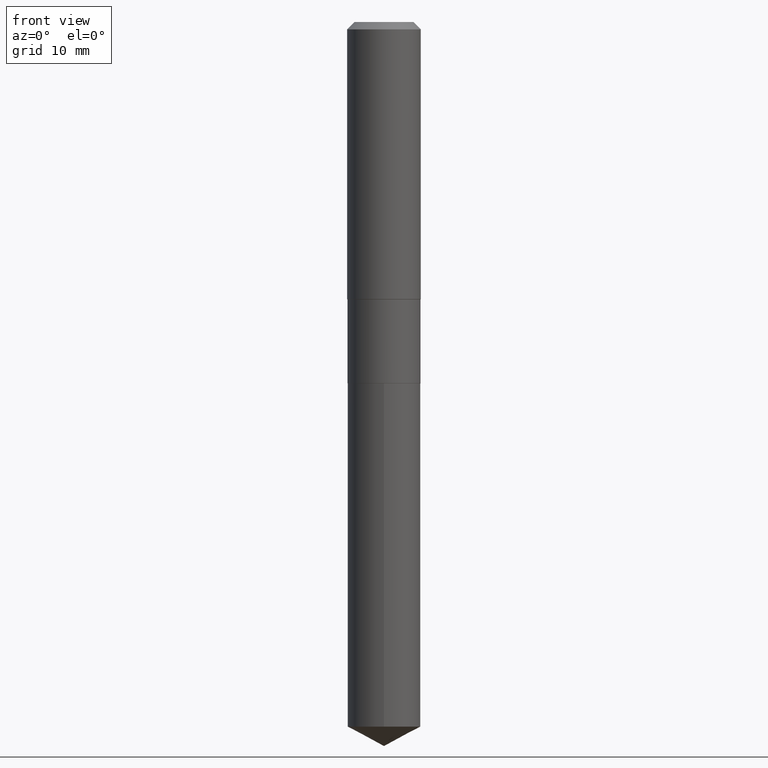
[diagram: clean part render]
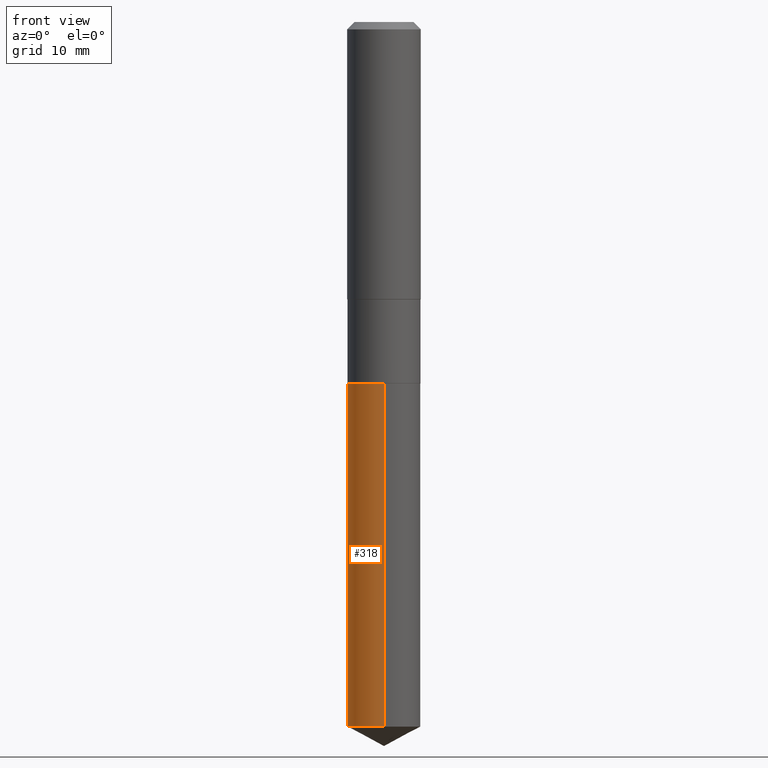
[diagram: same view with one face highlighted and labeled with its STEP entity id]
A machine part, front view. The second image highlights one B-rep face of the part: STEP entity #318.
In plain terms, the highlighted cylindrical surface (edge-blend (fillet) strip) has radius 5.95 mm, axis along (-0, 0, 1).
Its self-contained STEP definition (entity closure, byte-faithful):
#8 = DIRECTION ( 'NONE',  ( -6.982962677686265133E-15, -1.000000000000000000, 3.498631368620187579E-15 ) ) ;
#14 = AXIS2_PLACEMENT_3D ( 'NONE', #133, #358, #127 ) ;
#19 = VERTEX_POINT ( 'NONE', #160 ) ;
#30 = CIRCLE ( 'NONE', #230, 0.2342500000000000138 ) ;
#32 = CARTESIAN_POINT ( 'NONE',  ( -1.635759007247950816E-15, -0.2342500000000080906, -2.318899999999998851 ) ) ;
#37 = VERTEX_POINT ( 'NONE', #348 ) ;
#40 = VECTOR ( 'NONE', #363, 39.37007874015748143 ) ;
#46 = LINE ( 'NONE', #418, #254 ) ;
#51 = EDGE_LOOP ( 'NONE', ( #303, #426, #292, #454 ) ) ;
#62 = EDGE_CURVE ( 'NONE', #37, #166, #46, .T. ) ;
#94 = EDGE_CURVE ( 'NONE', #37, #19, #212, .T. ) ;
#127 = DIRECTION ( 'NONE',  ( -6.982962677686265133E-15, -1.000000000000000000, 2.332420912413458386E-15 ) ) ;
#133 = CARTESIAN_POINT ( 'NONE',  ( 1.105631358694246645E-28, -1.578551568972603113E-14, -4.521147065633298823 ) ) ;
#142 = DIRECTION ( 'NONE',  ( -2.445464024596642268E-29, 3.491488186350020456E-15, 1.000000000000000000 ) ) ;
#160 = CARTESIAN_POINT ( 'NONE',  ( -1.635759007247896976E-15, -0.2342500000000157512, -4.521147065633297935 ) ) ;
#166 = VERTEX_POINT ( 'NONE', #280 ) ;
#191 = VERTEX_POINT ( 'NONE', #479 ) ;
#194 = DIRECTION ( 'NONE',  ( -2.445464024596642268E-29, 3.491488186350020456E-15, 1.000000000000000000 ) ) ;
#206 = LINE ( 'NONE', #32, #40 ) ;
#212 = CIRCLE ( 'NONE', #14, 0.2342500000000000138 ) ;
#230 = AXIS2_PLACEMENT_3D ( 'NONE', #236, #194, #8 ) ;
#236 = CARTESIAN_POINT ( 'NONE',  ( 5.670797614662712652E-29, -8.096396076643368740E-15, -2.318899999999999739 ) ) ;
#253 = CYLINDRICAL_SURFACE ( 'NONE', #342, 0.2342500000000000138 ) ;
#254 = VECTOR ( 'NONE', #464, 39.37007874015748143 ) ;
#261 = EDGE_CURVE ( 'NONE', #19, #191, #206, .T. ) ;
#280 = CARTESIAN_POINT ( 'NONE',  ( 1.664446358518145618E-15, 0.2342499999999919369, -2.318900000000000627 ) ) ;
#292 = ORIENTED_EDGE ( 'NONE', *, *, #261, .T. ) ;
#303 = ORIENTED_EDGE ( 'NONE', *, *, #62, .F. ) ;
#318 = ADVANCED_FACE ( 'NONE', ( #407 ), #253, .T. ) ;
#336 = DIRECTION ( 'NONE',  ( -6.982962677686265133E-15, -1.000000000000000000, 3.498631368620187579E-15 ) ) ;
#342 = AXIS2_PLACEMENT_3D ( 'NONE', #410, #142, #336 ) ;
#348 = CARTESIAN_POINT ( 'NONE',  ( 1.664446358518144829E-15, 0.2342499999999841931, -4.521147065633300599 ) ) ;
#358 = DIRECTION ( 'NONE',  ( -2.445464024596642268E-29, 3.491488186350020456E-15, 1.000000000000000000 ) ) ;
#363 = DIRECTION ( 'NONE',  ( -2.445464024596642268E-29, 3.491488186350020456E-15, 1.000000000000000000 ) ) ;
#407 = FACE_OUTER_BOUND ( 'NONE', #51, .T. ) ;
#410 = CARTESIAN_POINT ( 'NONE',  ( 5.670797614662712652E-29, -8.096396076643368740E-15, -2.318899999999999739 ) ) ;
#418 = CARTESIAN_POINT ( 'NONE',  ( 1.664446358518091187E-15, 0.2342499999999919091, -2.318900000000000627 ) ) ;
#426 = ORIENTED_EDGE ( 'NONE', *, *, #94, .T. ) ;
#454 = ORIENTED_EDGE ( 'NONE', *, *, #466, .F. ) ;
#464 = DIRECTION ( 'NONE',  ( -2.445464024596642268E-29, 3.491488186350020456E-15, 1.000000000000000000 ) ) ;
#466 = EDGE_CURVE ( 'NONE', #166, #191, #30, .T. ) ;
#479 = CARTESIAN_POINT ( 'NONE',  ( -1.635759007247950816E-15, -0.2342500000000080906, -2.318899999999998851 ) ) ;